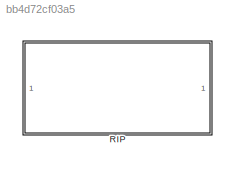
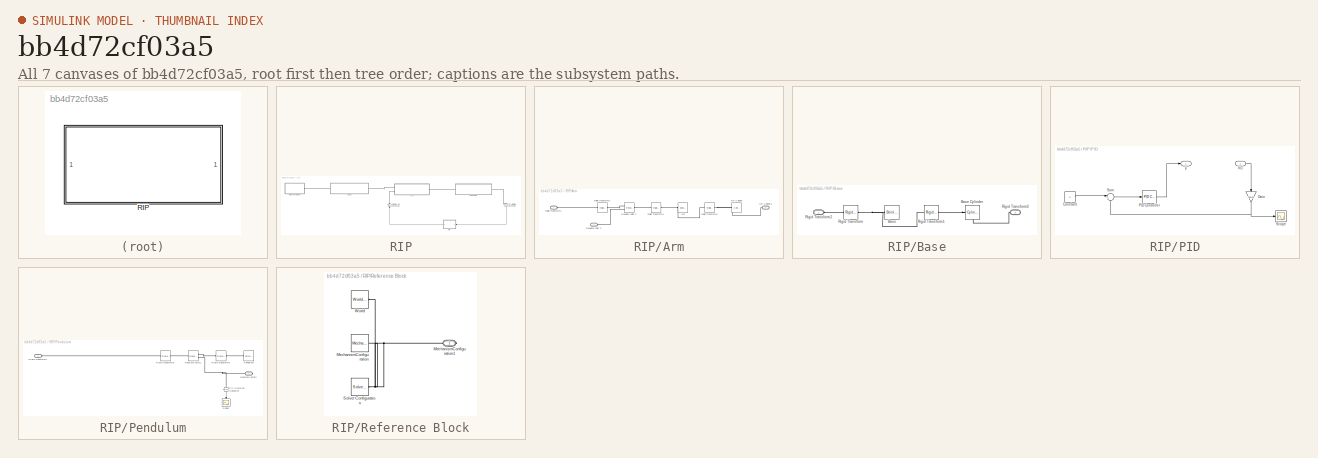
[diagram: thumbnail index - all 7 canvases of the model, root first then tree order]
MODEL slx_bb4d72cf03a5
KIND model
CONFIG AbsTol = auto
CONFIG EnableMultiTasking = off
CONFIG FixedStep = auto
CONFIG MaxStep = auto
CONFIG MinStep = auto
CONFIG RelTol = 1e-3
CONFIG SampleTimeConstraint = Unconstrained
CONFIG Solver = VariableStepAuto
CONFIG SolverName = VariableStepAuto
CONFIG StartTime = 0.0
CONFIG StopTime = 50.0
BLOCK [SubSystem] RIP
  Ports = []
  RequestExecContextInheritance = off
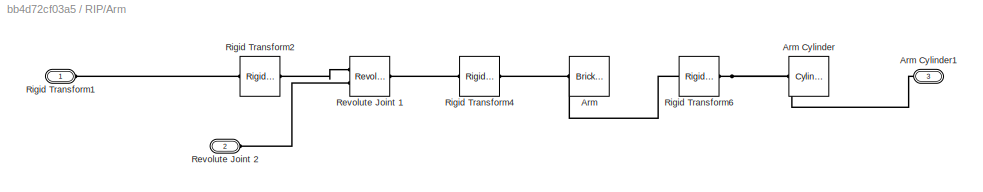
BLOCK [SubSystem] RIP/Arm
  Ports = [0, 0, 0, 0, 0, 2, 1]
  RequestExecContextInheritance = off
BLOCK [Reference] RIP/Arm/Arm  REF=sm_lib/Body Elements/Brick Solid
  NameLocation = top
  Ports = [0, 0, 0, 0, 0, 0, 1]
  SourceBlock = sm_lib/Body Elements/Brick Solid
  SourceProductBaseCode = MS
  SourceType = Brick Solid
BLOCK [Reference] RIP/Arm/Arm Cylinder  REF=sm_lib/Body Elements/Cylindrical Solid
  NameLocation = top
  Ports = [0, 0, 0, 0, 0, 0, 1]
  SourceBlock = sm_lib/Body Elements/Cylindrical Solid
  SourceProductBaseCode = MS
  SourceType = Cylindrical Solid
BLOCK [PMIOPort] RIP/Arm/Arm Cylinder1
  Port = 3
  Side = Right
BLOCK [Reference] RIP/Arm/Revolute Joint 1  REF=sm_lib/Joints/Revolute Joint
  Ports = [0, 0, 0, 0, 0, 2, 1]
  SourceBlock = sm_lib/Joints/Revolute Joint
  SourceProductBaseCode = MS
  SourceType = Revolute Joint
BLOCK [PMIOPort] RIP/Arm/Revolute Joint 2
  Port = 2
  Side = Left
BLOCK [PMIOPort] RIP/Arm/Rigid Transform1
  Side = Left
BLOCK [Reference] RIP/Arm/Rigid Transform2  REF=sm_lib/Frames and
Transforms/Rigid
Transform
  Ports = [0, 0, 0, 0, 0, 1, 1]
  SourceBlock = sm_lib/Frames and\nTransforms/Rigid\nTransform
  SourceProductBaseCode = MS
  SourceType = Rigid\nTransform
BLOCK [Reference] RIP/Arm/Rigid Transform4  REF=sm_lib/Frames and
Transforms/Rigid
Transform
  Ports = [0, 0, 0, 0, 0, 1, 1]
  SourceBlock = sm_lib/Frames and\nTransforms/Rigid\nTransform
  SourceProductBaseCode = MS
  SourceType = Rigid\nTransform
BLOCK [Reference] RIP/Arm/Rigid Transform6  REF=sm_lib/Frames and
Transforms/Rigid
Transform
  Ports = [0, 0, 0, 0, 0, 1, 1]
  SourceBlock = sm_lib/Frames and\nTransforms/Rigid\nTransform
  SourceProductBaseCode = MS
  SourceType = Rigid\nTransform
BLOCK [SubSystem] RIP/Base
  Ports = [0, 0, 0, 0, 0, 1, 1]
  RequestExecContextInheritance = off
BLOCK [Reference] RIP/Base/Base  REF=sm_lib/Body Elements/Brick Solid
  NameLocation = top
  Ports = [0, 0, 0, 0, 0, 0, 1]
  SourceBlock = sm_lib/Body Elements/Brick Solid
  SourceProductBaseCode = MS
  SourceType = Brick Solid
BLOCK [Reference] RIP/Base/Base Cylinder   REF=sm_lib/Body Elements/Cylindrical Solid
  NameLocation = top
  Ports = [0, 0, 0, 0, 0, 0, 1]
  SourceBlock = sm_lib/Body Elements/Cylindrical Solid
  SourceProductBaseCode = MS
  SourceType = Cylindrical Solid
BLOCK [Reference] RIP/Base/Rigid Transform  REF=sm_lib/Frames and
Transforms/Rigid
Transform
  Ports = [0, 0, 0, 0, 0, 1, 1]
  SourceBlock = sm_lib/Frames and\nTransforms/Rigid\nTransform
  SourceProductBaseCode = MS
  SourceType = Rigid\nTransform
BLOCK [Reference] RIP/Base/Rigid Transform1  REF=sm_lib/Frames and
Transforms/Rigid
Transform
  Ports = [0, 0, 0, 0, 0, 1, 1]
  SourceBlock = sm_lib/Frames and\nTransforms/Rigid\nTransform
  SourceProductBaseCode = MS
  SourceType = Rigid\nTransform
BLOCK [PMIOPort] RIP/Base/Rigid Transform2
  Side = Left
BLOCK [PMIOPort] RIP/Base/Rigid Transform3
  Port = 2
  Side = Right
BLOCK [SubSystem] RIP/PID
  NameLocation = top
  Ports = [1, 1]
  RequestExecContextInheritance = off
BLOCK [Constant] RIP/PID/Constant
  Value = 0
BLOCK [Gain] RIP/PID/Gain
  Gain = 180/pi
  NameLocation = left
BLOCK [Inport] RIP/PID/In1
BLOCK [Reference] RIP/PID/PID Controller  REF=simulink/Continuous/PID Controller
  Ports = [1, 1]
  SourceBlock = simulink/Continuous/PID Controller
  SourceProductBaseCode = SL
  SourceType = PID 1dof
BLOCK [Scope] RIP/PID/Scope
  Floating = off
  NumInputPorts = 1
  Ports = [1]
  ScopeSpecificationString = Simulink.scopes.TimeScopeBlockCfg('CurrentConfiguration', extmgr.ConfigurationSet(extmgr.Configuration('Core','General UI',true),extmgr.Configuration('Core','Source UI',true),extmgr.Configuration('Sources','WiredSimulink',true),extmgr.Configuration('Visuals','Time Domain',true),extmgr.Configuration('Tools','Plot Navigation',true),extmgr.Configuration('Tools','Measurements',true)),'Version','2020a'...<+1ch>
BLOCK [Sum] RIP/PID/Sum
  Inputs = |+-
  Ports = [2, 1]
BLOCK [Outport] RIP/PID/y
BLOCK [Reference] RIP/PS-Simulink Converter  REF=nesl_utility/PS-Simulink
Converter
  NameLocation = left
  Ports = [0, 1, 0, 0, 0, 1]
  SourceBlock = nesl_utility/PS-Simulink\nConverter
  SourceProductBaseCode = SS
  SourceType = PS-Simulink\nConverter
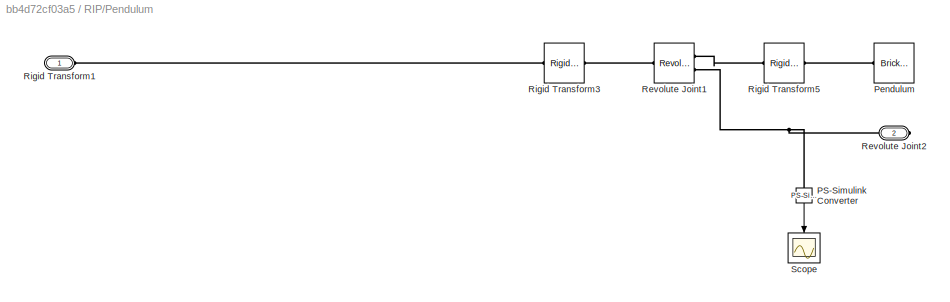
BLOCK [SubSystem] RIP/Pendulum
  Ports = [0, 0, 0, 0, 0, 1, 1]
  RequestExecContextInheritance = off
BLOCK [Reference] RIP/Pendulum/PS-Simulink Converter  REF=nesl_utility/PS-Simulink
Converter
  NameLocation = left
  Ports = [0, 1, 0, 0, 0, 1]
  SourceBlock = nesl_utility/PS-Simulink\nConverter
  SourceProductBaseCode = SS
  SourceType = PS-Simulink\nConverter
BLOCK [Reference] RIP/Pendulum/Pendulum  REF=sm_lib/Body Elements/Brick Solid
  NameLocation = top
  Ports = [0, 0, 0, 0, 0, 0, 1]
  SourceBlock = sm_lib/Body Elements/Brick Solid
  SourceProductBaseCode = MS
  SourceType = Brick Solid
BLOCK [Reference] RIP/Pendulum/Revolute Joint1  REF=sm_lib/Joints/Revolute Joint
  Ports = [0, 0, 0, 0, 0, 1, 2]
  SourceBlock = sm_lib/Joints/Revolute Joint
  SourceProductBaseCode = MS
  SourceType = Revolute Joint
BLOCK [PMIOPort] RIP/Pendulum/Revolute Joint2
  Port = 2
  Side = Right
BLOCK [PMIOPort] RIP/Pendulum/Rigid Transform1
  Side = Left
BLOCK [Reference] RIP/Pendulum/Rigid Transform3  REF=sm_lib/Frames and
Transforms/Rigid
Transform
  Ports = [0, 0, 0, 0, 0, 1, 1]
  SourceBlock = sm_lib/Frames and\nTransforms/Rigid\nTransform
  SourceProductBaseCode = MS
  SourceType = Rigid\nTransform
BLOCK [Reference] RIP/Pendulum/Rigid Transform5  REF=sm_lib/Frames and
Transforms/Rigid
Transform
  Ports = [0, 0, 0, 0, 0, 1, 1]
  SourceBlock = sm_lib/Frames and\nTransforms/Rigid\nTransform
  SourceProductBaseCode = MS
  SourceType = Rigid\nTransform
BLOCK [Scope] RIP/Pendulum/Scope
  Floating = off
  NameLocation = left
  NumInputPorts = 1
  Ports = [1]
  ScopeSpecificationString = Simulink.scopes.TimeScopeBlockCfg('CurrentConfiguration', extmgr.ConfigurationSet(extmgr.Configuration('Core','General UI',true),extmgr.Configuration('Core','Source UI',true),extmgr.Configuration('Sources','WiredSimulink',true,'DataLoggingVariableName','ScopeData1'),extmgr.Configuration('Visuals','Time Domain',true,'SerializedDisplays',{struct('MinYLimReal','-0.02795','MaxYLimReal','0.04189','YLab...<+1380ch>
BLOCK [SubSystem] RIP/Reference Block
  Ports = [0, 0, 0, 0, 0, 0, 1]
  RequestExecContextInheritance = off
BLOCK [Reference] RIP/Reference Block/MechanismConfiguration  REF=sm_lib/Utilities/Mechanism
Configuration
  Ports = [0, 0, 0, 0, 0, 0, 1]
  SourceBlock = sm_lib/Utilities/Mechanism\nConfiguration
  SourceProductBaseCode = MS
  SourceType = Mechanism\nConfiguration
BLOCK [PMIOPort] RIP/Reference Block/MechanismConfiguration1
  Side = Right
BLOCK [Reference] RIP/Reference Block/Solver Configuration  REF=nesl_utility/Solver
Configuration
  Ports = [0, 0, 0, 0, 0, 0, 1]
  SourceBlock = nesl_utility/Solver\nConfiguration
  SourceProductBaseCode = SS
  SourceType = Solver\nConfiguration
BLOCK [Reference] RIP/Reference Block/World  REF=sm_lib/Frames and
Transforms/World Frame
  Ports = [0, 0, 0, 0, 0, 0, 1]
  SourceBlock = sm_lib/Frames and\nTransforms/World Frame
  SourceProductBaseCode = MS
  SourceType = World Frame
BLOCK [Reference] RIP/Simulink-PS Converter  REF=nesl_utility/Simulink-PS
Converter
  NameLocation = right
  Ports = [1, 0, 0, 0, 0, 0, 1]
  SourceBlock = nesl_utility/Simulink-PS\nConverter
  SourceProductBaseCode = SS
  SourceType = Simulink-PS\nConverter
LINE RIP/PID/Constant:1 -> RIP/PID/Sum:1
NET RIP/PID/Gain:1 -> RIP/PID/Scope:1, RIP/PID/Sum:2
LINE RIP/PID/In1:1 -> RIP/PID/Gain:1
LINE RIP/PID/PID Controller:1 -> RIP/PID/y:1
LINE RIP/PID/Sum:1 -> RIP/PID/PID Controller:1
LINE RIP/PID:1 -> RIP/Simulink-PS Converter:1
LINE RIP/PS-Simulink Converter:1 -> RIP/PID:1
LINE RIP/Pendulum/PS-Simulink Converter:1 -> RIP/Pendulum/Scope:1
PNET net1: RIP/Arm/Arm Cylinder1:RConn1 -- RIP/Arm/Arm Cylinder:RConn1 -- RIP/Arm/Rigid Transform6:RConn1
PNET net2: RIP/Arm/Arm:RConn1 -- RIP/Arm/Rigid Transform4:RConn1 -- RIP/Arm/Rigid Transform6:LConn1
PLINE RIP/Arm/Revolute Joint 1:LConn1 -- RIP/Arm/Rigid Transform2:RConn1
PLINE RIP/Arm/Revolute Joint 1:LConn2 -- RIP/Arm/Revolute Joint 2:RConn1
PLINE RIP/Arm/Revolute Joint 1:RConn1 -- RIP/Arm/Rigid Transform4:LConn1
PLINE RIP/Arm/Rigid Transform1:RConn1 -- RIP/Arm/Rigid Transform2:LConn1
PLINE RIP/Arm:LConn1 -- RIP/Base:RConn1
PLINE RIP/Arm:LConn2 -- RIP/Simulink-PS Converter:RConn1
PLINE RIP/Arm:RConn1 -- RIP/Pendulum:LConn1
PNET net3: RIP/Base/Base Cylinder :RConn1 -- RIP/Base/Rigid Transform1:RConn1 -- RIP/Base/Rigid Transform3:RConn1
PNET net4: RIP/Base/Base:RConn1 -- RIP/Base/Rigid Transform1:LConn1 -- RIP/Base/Rigid Transform:RConn1
PLINE RIP/Base/Rigid Transform2:RConn1 -- RIP/Base/Rigid Transform:LConn1
PLINE RIP/Base:LConn1 -- RIP/Reference Block:RConn1
PLINE RIP/PS-Simulink Converter:LConn1 -- RIP/Pendulum:RConn1
PNET net5: RIP/Pendulum/PS-Simulink Converter:LConn1 -- RIP/Pendulum/Revolute Joint1:RConn2 -- RIP/Pendulum/Revolute Joint2:RConn1
PLINE RIP/Pendulum/Pendulum:RConn1 -- RIP/Pendulum/Rigid Transform5:RConn1
PLINE RIP/Pendulum/Revolute Joint1:LConn1 -- RIP/Pendulum/Rigid Transform3:RConn1
PLINE RIP/Pendulum/Revolute Joint1:RConn1 -- RIP/Pendulum/Rigid Transform5:LConn1
PLINE RIP/Pendulum/Rigid Transform1:RConn1 -- RIP/Pendulum/Rigid Transform3:LConn1
PNET net6: RIP/Reference Block/MechanismConfiguration1:RConn1 -- RIP/Reference Block/MechanismConfiguration:RConn1 -- RIP/Reference Block/Solver Configuration:RConn1 -- RIP/Reference Block/World:RConn1
note: NET lines group one-source signal fan-out (src -> all destinations, sorted); 1:1 wires keep LINE; PNET lines group multi-terminal physical nets as a canonical sorted terminal list (undirected conserving connections); 2-terminal nets keep the pairwise PLINE form
